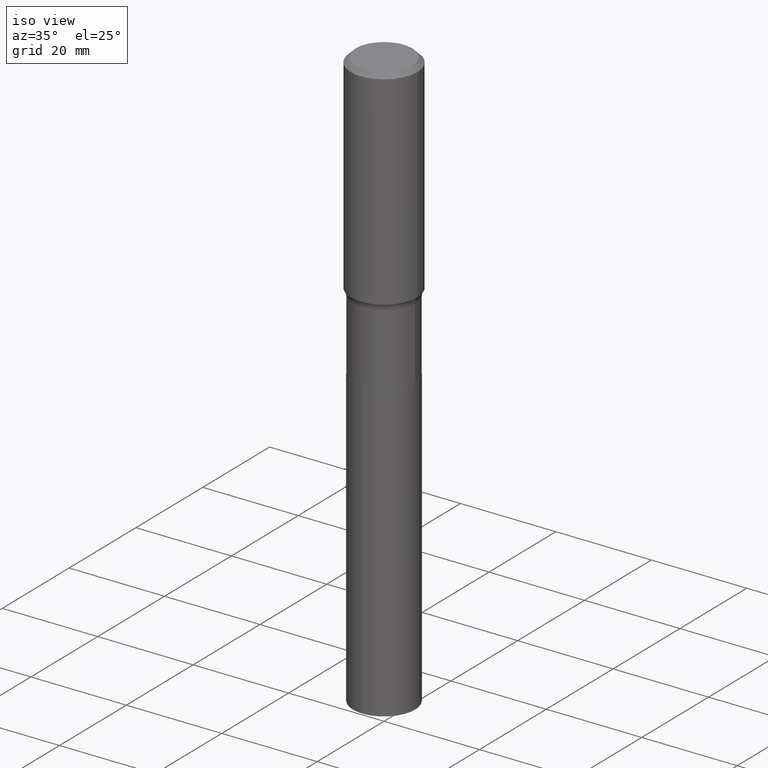
[diagram: clean part render]
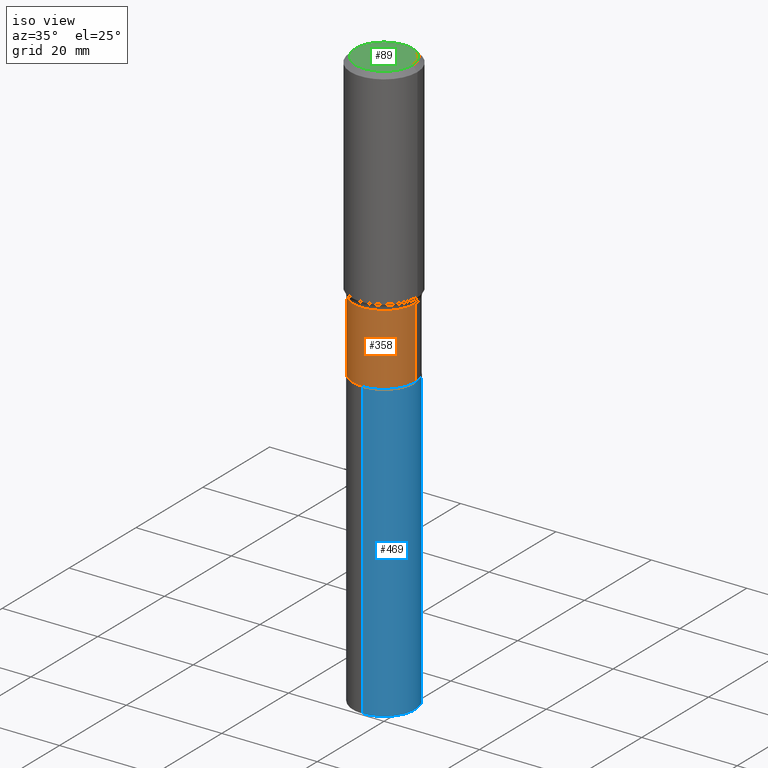
[diagram: same view with three faces highlighted in distinct colors, each labeled with its STEP entity id]
A machine part, iso view with three faces highlighted in distinct colors.
Their STEP definitions:

[orange] entity #358 — the highlighted cylindrical surface (partial cylindrical patch) has radius 6.4999 mm, axis along (-0, 0, 1).
#6 = AXIS2_PLACEMENT_3D ( 'NONE', #44, #424, #305 ) ;
#15 = CIRCLE ( 'NONE', #167, 0.2559000000000000163 ) ;
#42 = DIRECTION ( 'NONE',  ( -2.445468806185136597E-29, 3.491481338843145583E-15, 1.000000000000000000 ) ) ;
#44 = CARTESIAN_POINT ( 'NONE',  ( 4.337283474649957727E-29, -6.192491302572202795E-15, -1.773599999999999843 ) ) ;
#48 = EDGE_CURVE ( 'NONE', #145, #118, #473, .T. ) ;
#60 = CARTESIAN_POINT ( 'NONE',  ( -0.2559000000000000163, 1.818278860810096492E-15, -1.258755489596230312E-29 ) ) ;
#61 = CARTESIAN_POINT ( 'NONE',  ( -0.2559000000000000719, -5.400882529448933178E-15, -2.361699999999999910 ) ) ;
#73 = VERTEX_POINT ( 'NONE', #61 ) ;
#74 = CARTESIAN_POINT ( 'NONE',  ( 0.000000000000000000, 0.000000000000000000, 0.000000000000000000 ) ) ;
#95 = EDGE_CURVE ( 'NONE', #73, #145, #15, .T. ) ;
#110 = ORIENTED_EDGE ( 'NONE', *, *, #447, .F. ) ;
#114 = DIRECTION ( 'NONE',  ( 1.000000000000000000, -6.982962677686266711E-15, 4.876176775795935232E-29 ) ) ;
#118 = VERTEX_POINT ( 'NONE', #361 ) ;
#128 = DIRECTION ( 'NONE',  ( 1.000000000000000000, -6.982962677686269866E-15, 0.000000000000000000 ) ) ;
#134 = CARTESIAN_POINT ( 'NONE',  ( 5.775463679567436952E-29, -8.245831477945857334E-15, -2.361699999999999910 ) ) ;
#145 = VERTEX_POINT ( 'NONE', #317 ) ;
#154 = CIRCLE ( 'NONE', #6, 0.2558999999999999608 ) ;
#167 = AXIS2_PLACEMENT_3D ( 'NONE', #134, #171, #128 ) ;
#169 = EDGE_CURVE ( 'NONE', #73, #339, #480, .T. ) ;
#171 = DIRECTION ( 'NONE',  ( -2.445468806185136597E-29, 3.491481338843145583E-15, 1.000000000000000000 ) ) ;
#202 = CARTESIAN_POINT ( 'NONE',  ( 0.2559000000000000163, -1.786940149219915740E-15, 1.247813636926179898E-29 ) ) ;
#207 = DIRECTION ( 'NONE',  ( -2.445468806185136877E-29, 3.491481338843145188E-15, 1.000000000000000000 ) ) ;
#222 = CARTESIAN_POINT ( 'NONE',  ( -0.2558999999999999608, -5.400882529448933178E-15, -1.773599999999999843 ) ) ;
#267 = ORIENTED_EDGE ( 'NONE', *, *, #95, .T. ) ;
#281 = DIRECTION ( 'NONE',  ( -2.445468806185136877E-29, 3.491481338843145188E-15, 1.000000000000000000 ) ) ;
#304 = EDGE_LOOP ( 'NONE', ( #327, #267, #466, #110 ) ) ;
#305 = DIRECTION ( 'NONE',  ( 1.000000000000000000, -6.982962677686266711E-15, 0.000000000000000000 ) ) ;
#317 = CARTESIAN_POINT ( 'NONE',  ( 0.2559000000000000163, -1.003277162716577307E-14, -2.361699999999999910 ) ) ;
#327 = ORIENTED_EDGE ( 'NONE', *, *, #169, .F. ) ;
#339 = VERTEX_POINT ( 'NONE', #222 ) ;
#344 = VECTOR ( 'NONE', #207, 39.37007874015748143 ) ;
#358 = ADVANCED_FACE ( 'NONE', ( #409 ), #452, .T. ) ;
#361 = CARTESIAN_POINT ( 'NONE',  ( 0.2558999999999999608, -7.979431451792117746E-15, -1.773599999999999843 ) ) ;
#377 = VECTOR ( 'NONE', #281, 39.37007874015748143 ) ;
#409 = FACE_OUTER_BOUND ( 'NONE', #304, .T. ) ;
#424 = DIRECTION ( 'NONE',  ( -2.445468806185136597E-29, 3.491481338843145583E-15, 1.000000000000000000 ) ) ;
#447 = EDGE_CURVE ( 'NONE', #339, #118, #154, .T. ) ;
#452 = CYLINDRICAL_SURFACE ( 'NONE', #455, 0.2559000000000000163 ) ;
#455 = AXIS2_PLACEMENT_3D ( 'NONE', #74, #42, #114 ) ;
#466 = ORIENTED_EDGE ( 'NONE', *, *, #48, .T. ) ;
#473 = LINE ( 'NONE', #202, #377 ) ;
#480 = LINE ( 'NONE', #60, #344 ) ;

[blue] entity #469 — the highlighted cylindrical surface (partial cylindrical patch) has radius 6.4999 mm, axis along (-0, 0, 1).
#20 = LINE ( 'NONE', #174, #362 ) ;
#34 = EDGE_CURVE ( 'NONE', #43, #192, #468, .T. ) ;
#36 = DIRECTION ( 'NONE',  ( -2.445245112378801486E-29, 3.491801681105678246E-15, 1.000000000000000000 ) ) ;
#43 = VERTEX_POINT ( 'NONE', #54 ) ;
#54 = CARTESIAN_POINT ( 'NONE',  ( 1.818278860810213243E-15, 0.2558999999999831965, -4.801215039925869732 ) ) ;
#87 = CARTESIAN_POINT ( 'NONE',  ( 1.174067601936764775E-28, -1.676413403527045995E-14, -4.801215039925868844 ) ) ;
#99 = CARTESIAN_POINT ( 'NONE',  ( 1.818278860810154079E-15, 0.2558999999999917452, -2.362200000000000522 ) ) ;
#101 = CARTESIAN_POINT ( 'NONE',  ( -1.786940149219797805E-15, -0.2559000000000167252, -4.801215039925867956 ) ) ;
#133 = DIRECTION ( 'NONE',  ( -2.445245112378801767E-29, 3.491801681105678246E-15, 1.000000000000000000 ) ) ;
#139 = DIRECTION ( 'NONE',  ( -2.445245112378801767E-29, 3.491801681105678246E-15, 1.000000000000000000 ) ) ;
#141 = EDGE_CURVE ( 'NONE', #151, #223, #20, .T. ) ;
#149 = DIRECTION ( 'NONE',  ( -6.982962677686266711E-15, -1.000000000000000000, 3.202635397027271900E-15 ) ) ;
#151 = VERTEX_POINT ( 'NONE', #101 ) ;
#164 = ORIENTED_EDGE ( 'NONE', *, *, #141, .F. ) ;
#170 = DIRECTION ( 'NONE',  ( -2.445245112378801486E-29, 3.491801681105678246E-15, 1.000000000000000000 ) ) ;
#174 = CARTESIAN_POINT ( 'NONE',  ( -1.786940149219857758E-15, -0.2559000000000082875, -2.362199999999998745 ) ) ;
#191 = AXIS2_PLACEMENT_3D ( 'NONE', #458, #269, #419 ) ;
#192 = VERTEX_POINT ( 'NONE', #400 ) ;
#205 = VECTOR ( 'NONE', #133, 39.37007874015748143 ) ;
#223 = VERTEX_POINT ( 'NONE', #289 ) ;
#227 = DIRECTION ( 'NONE',  ( -6.982962677686266711E-15, -1.000000000000000000, 4.270180529369696392E-15 ) ) ;
#269 = DIRECTION ( 'NONE',  ( -2.445245112378801486E-29, 3.491801681105678246E-15, 1.000000000000000000 ) ) ;
#270 = ORIENTED_EDGE ( 'NONE', *, *, #464, .T. ) ;
#272 = EDGE_CURVE ( 'NONE', #223, #192, #328, .T. ) ;
#289 = CARTESIAN_POINT ( 'NONE',  ( -1.786940149219857758E-15, -0.2559000000000082875, -2.362199999999998745 ) ) ;
#292 = CARTESIAN_POINT ( 'NONE',  ( 5.776686413970529753E-29, -8.247577218615278049E-15, -2.362199999999999633 ) ) ;
#303 = FACE_OUTER_BOUND ( 'NONE', #324, .T. ) ;
#309 = ORIENTED_EDGE ( 'NONE', *, *, #34, .T. ) ;
#311 = ORIENTED_EDGE ( 'NONE', *, *, #272, .F. ) ;
#324 = EDGE_LOOP ( 'NONE', ( #270, #309, #311, #164 ) ) ;
#328 = CIRCLE ( 'NONE', #462, 0.2559000000000000163 ) ;
#337 = AXIS2_PLACEMENT_3D ( 'NONE', #87, #170, #227 ) ;
#362 = VECTOR ( 'NONE', #139, 39.37007874015748143 ) ;
#400 = CARTESIAN_POINT ( 'NONE',  ( 1.818278860810214426E-15, 0.2558999999999917452, -2.362200000000000522 ) ) ;
#419 = DIRECTION ( 'NONE',  ( -6.982962677686266711E-15, -1.000000000000000000, 3.202635397027271900E-15 ) ) ;
#458 = CARTESIAN_POINT ( 'NONE',  ( 5.776686413970529753E-29, -8.247577218615278049E-15, -2.362199999999999633 ) ) ;
#460 = CYLINDRICAL_SURFACE ( 'NONE', #191, 0.2559000000000000163 ) ;
#462 = AXIS2_PLACEMENT_3D ( 'NONE', #292, #36, #149 ) ;
#463 = CIRCLE ( 'NONE', #337, 0.2559000000000000163 ) ;
#464 = EDGE_CURVE ( 'NONE', #151, #43, #463, .T. ) ;
#468 = LINE ( 'NONE', #99, #205 ) ;
#469 = ADVANCED_FACE ( 'NONE', ( #303 ), #460, .T. ) ;

[green] entity #89 — the highlighted planar face has unit normal (0, -0, -1).
#22 = AXIS2_PLACEMENT_3D ( 'NONE', #264, #450, #262 ) ;
#24 = CARTESIAN_POINT ( 'NONE',  ( -5.014852121625167883E-47, 7.159879756154482429E-33, 2.050671065172242981E-18 ) ) ;
#72 = CARTESIAN_POINT ( 'NONE',  ( -1.002970424325033577E-46, 1.431975951230896486E-32, 4.101342130344485961E-18 ) ) ;
#79 = DIRECTION ( 'NONE',  ( -2.445468806185136597E-29, 3.491481338843145583E-15, 1.000000000000000000 ) ) ;
#89 = ADVANCED_FACE ( 'NONE', ( #284 ), #212, .F. ) ;
#107 = CARTESIAN_POINT ( 'NONE',  ( -0.2342600000000000238, 1.707997756148671759E-15, 4.101342130332794026E-18 ) ) ;
#153 = EDGE_LOOP ( 'NONE', ( #302, #425 ) ) ;
#179 = DIRECTION ( 'NONE',  ( 1.000000000000000000, -6.982962677686267499E-15, 4.876157962347795834E-29 ) ) ;
#181 = CARTESIAN_POINT ( 'NONE',  ( 0.2342600000000000238, -1.821115673845785155E-15, 4.101342130356573868E-18 ) ) ;
#212 = PLANE ( 'NONE',  #282 ) ;
#224 = EDGE_CURVE ( 'NONE', #275, #346, #229, .T. ) ;
#229 = CIRCLE ( 'NONE', #253, 0.2342600000000000238 ) ;
#235 = EDGE_CURVE ( 'NONE', #346, #275, #478, .T. ) ;
#242 = DIRECTION ( 'NONE',  ( 2.438088387897960049E-29, -3.491481338843145188E-15, -1.000000000000000000 ) ) ;
#253 = AXIS2_PLACEMENT_3D ( 'NONE', #72, #79, #179 ) ;
#262 = DIRECTION ( 'NONE',  ( 1.000000000000000000, -6.982962677686267499E-15, 4.876157962347795834E-29 ) ) ;
#264 = CARTESIAN_POINT ( 'NONE',  ( -1.002970424325033577E-46, 1.431975951230896486E-32, 4.101342130344485961E-18 ) ) ;
#275 = VERTEX_POINT ( 'NONE', #181 ) ;
#282 = AXIS2_PLACEMENT_3D ( 'NONE', #24, #242, #357 ) ;
#284 = FACE_OUTER_BOUND ( 'NONE', #153, .T. ) ;
#302 = ORIENTED_EDGE ( 'NONE', *, *, #235, .T. ) ;
#346 = VERTEX_POINT ( 'NONE', #107 ) ;
#357 = DIRECTION ( 'NONE',  ( -1.000000000000000000, 6.982962677686265922E-15, -4.876176775795935793E-29 ) ) ;
#425 = ORIENTED_EDGE ( 'NONE', *, *, #224, .T. ) ;
#450 = DIRECTION ( 'NONE',  ( -2.445468806185136597E-29, 3.491481338843145583E-15, 1.000000000000000000 ) ) ;
#478 = CIRCLE ( 'NONE', #22, 0.2342600000000000238 ) ;